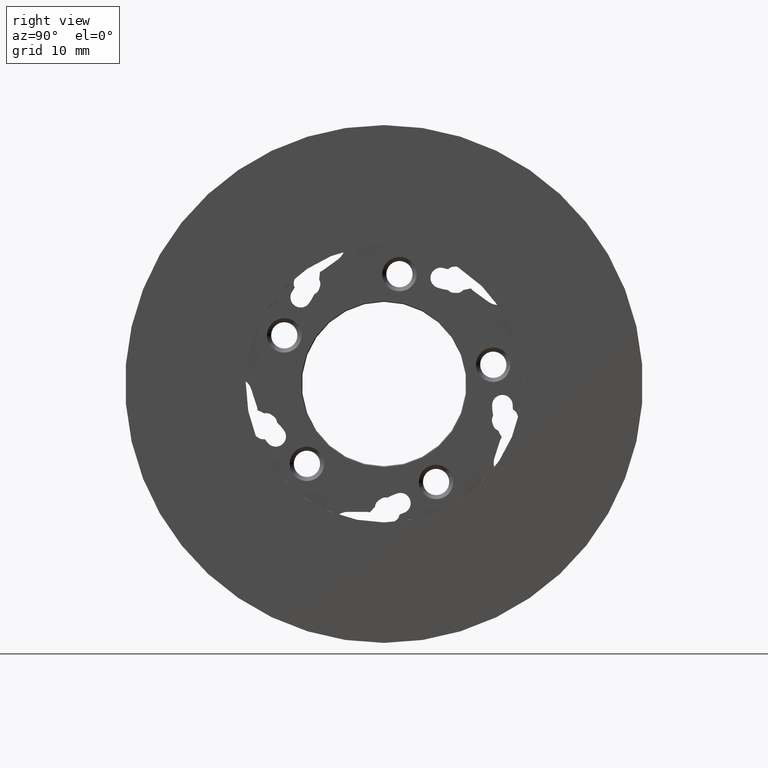
[diagram: clean part render]
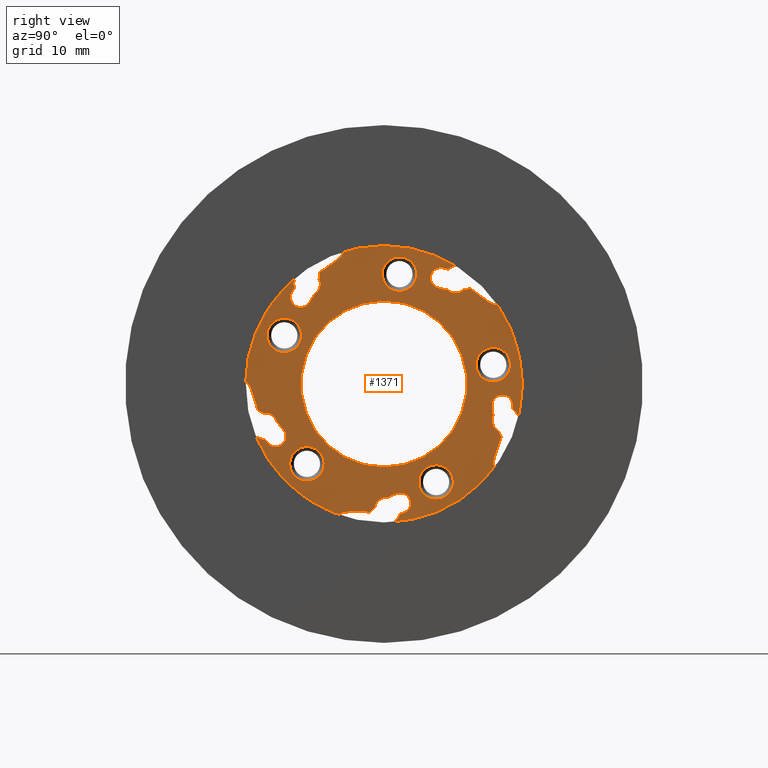
[diagram: same view with one face highlighted and labeled with its STEP entity id]
A machine part, right view. The second image highlights one B-rep face of the part: STEP entity #1371.
In plain terms, the highlighted planar face has unit normal (1, 0, -0).
Its self-contained STEP definition (entity closure, byte-faithful):
#8 = ORIENTED_EDGE ( 'NONE', *, *, #730, .F. ) ;
#13 = VERTEX_POINT ( 'NONE', #3526 ) ;
#19 = DIRECTION ( 'NONE',  ( 1.000000000000000000, 0.0000000000000000000, 0.0000000000000000000 ) ) ;
#22 = VERTEX_POINT ( 'NONE', #1111 ) ;
#29 = AXIS2_PLACEMENT_3D ( 'NONE', #2748, #38, #1528 ) ;
#31 = CARTESIAN_POINT ( 'NONE',  ( 0.0000000000000000000, -13.43683965535640112, -3.933809380129548394 ) ) ;
#38 = DIRECTION ( 'NONE',  ( 1.000000000000000000, -0.0000000000000000000, -0.0000000000000000000 ) ) ;
#41 = DIRECTION ( 'NONE',  ( 1.000000000000000000, 0.0000000000000000000, 0.0000000000000000000 ) ) ;
#49 = EDGE_CURVE ( 'NONE', #2343, #3101, #996, .T. ) ;
#52 = ORIENTED_EDGE ( 'NONE', *, *, #2574, .T. ) ;
#71 = DIRECTION ( 'NONE',  ( 0.0000000000000000000, 0.0000000000000000000, -1.000000000000000000 ) ) ;
#75 = AXIS2_PLACEMENT_3D ( 'NONE', #2633, #1123, #3576 ) ;
#85 = CARTESIAN_POINT ( 'NONE',  ( 0.0000000000000000000, 20.30054600997444680, -2.534536114855402200 ) ) ;
#87 = CIRCLE ( 'NONE', #3790, 7.142357545004235142 ) ;
#88 = DIRECTION ( 'NONE',  ( 1.000000000000000000, -0.0000000000000000000, -0.0000000000000000000 ) ) ;
#91 = DIRECTION ( 'NONE',  ( 1.000000000000000000, 0.0000000000000000000, 0.0000000000000000000 ) ) ;
#94 = CIRCLE ( 'NONE', #1350, 0.9999999999999983347 ) ;
#97 = EDGE_CURVE ( 'NONE', #1805, #2864, #140, .T. ) ;
#98 = VECTOR ( 'NONE', #1545, 1000.000000000000114 ) ;
#116 = AXIS2_PLACEMENT_3D ( 'NONE', #1505, #3647, #3877 ) ;
#121 = AXIS2_PLACEMENT_3D ( 'NONE', #3852, #2014, #1127 ) ;
#127 = CARTESIAN_POINT ( 'NONE',  ( 0.0000000000000000000, -13.02209949457632732, -4.677080857530694580 ) ) ;
#128 = CARTESIAN_POINT ( 'NONE',  ( -1.734723475976807094E-15, -5.533392987301162691, -15.90914674915010885 ) ) ;
#129 = LINE ( 'NONE', #813, #1067 ) ;
#133 = CARTESIAN_POINT ( 'NONE',  ( -2.602085213965210642E-15, -8.143538971382165315, -11.41002299275925580 ) ) ;
#139 = VERTEX_POINT ( 'NONE', #3024 ) ;
#140 = CIRCLE ( 'NONE', #1008, 7.142357545004234254 ) ;
#151 = VERTEX_POINT ( 'NONE', #3646 ) ;
#160 = VERTEX_POINT ( 'NONE', #2400 ) ;
#166 = ORIENTED_EDGE ( 'NONE', *, *, #2324, .T. ) ;
#172 = DIRECTION ( 'NONE',  ( 0.0000000000000000000, -0.5877852522924684742, -0.8090169943749508930 ) ) ;
#173 = PLANE ( 'NONE',  #1346 ) ;
#179 = DIRECTION ( 'NONE',  ( 0.0000000000000000000, 0.5877852522924684742, 0.8090169943749507819 ) ) ;
#182 = DIRECTION ( 'NONE',  ( 0.0000000000000000000, -0.5877852522924802425, 0.8090169943749421222 ) ) ;
#187 = VERTEX_POINT ( 'NONE', #2989 ) ;
#198 = CIRCLE ( 'NONE', #625, 2.100000000000000533 ) ;
#202 = DIRECTION ( 'NONE',  ( 1.000000000000000000, -0.0000000000000000000, -0.0000000000000000000 ) ) ;
#210 = CARTESIAN_POINT ( 'NONE',  ( 0.0000000000000000000, 20.30054600997444680, -2.534536114855402200 ) ) ;
#213 = AXIS2_PLACEMENT_3D ( 'NONE', #1448, #202, #2315 ) ;
#214 = ORIENTED_EDGE ( 'NONE', *, *, #3035, .F. ) ;
#220 = CIRCLE ( 'NONE', #2847, 7.142357545004236030 ) ;
#228 = VERTEX_POINT ( 'NONE', #639 ) ;
#232 = CIRCLE ( 'NONE', #1237, 2.000000000000001776 ) ;
#234 = DIRECTION ( 'NONE',  ( 1.000000000000000000, 0.0000000000000000000, -0.0000000000000000000 ) ) ;
#235 = AXIS2_PLACEMENT_3D ( 'NONE', #2810, #1654, #1625 ) ;
#237 = ORIENTED_EDGE ( 'NONE', *, *, #2026, .T. ) ;
#239 = ORIENTED_EDGE ( 'NONE', *, *, #1033, .F. ) ;
#242 = EDGE_CURVE ( 'NONE', #1978, #1436, #387, .T. ) ;
#244 = DIRECTION ( 'NONE',  ( 1.000000000000000000, 0.0000000000000000000, 0.0000000000000000000 ) ) ;
#245 = EDGE_CURVE ( 'NONE', #1647, #2151, #3325, .T. ) ;
#249 = VERTEX_POINT ( 'NONE', #3356 ) ;
#254 = EDGE_CURVE ( 'NONE', #2785, #1922, #3182, .T. ) ;
#259 = ORIENTED_EDGE ( 'NONE', *, *, #773, .T. ) ;
#265 = VERTEX_POINT ( 'NONE', #3688 ) ;
#268 = DIRECTION ( 'NONE',  ( 0.0000000000000000000, 0.9510565162951544194, -0.3090169943749446202 ) ) ;
#270 = AXIS2_PLACEMENT_3D ( 'NONE', #3536, #2034, #2984 ) ;
#272 = AXIS2_PLACEMENT_3D ( 'NONE', #1364, #3496, #3801 ) ;
#273 = CARTESIAN_POINT ( 'NONE',  ( 0.0000000000000000000, -10.14092014699084032, 9.305175913851705616 ) ) ;
#277 = EDGE_CURVE ( 'NONE', #1355, #1286, #2506, .T. ) ;
#290 = VERTEX_POINT ( 'NONE', #629 ) ;
#292 = DIRECTION ( 'NONE',  ( 0.0000000000000000000, 0.9999815153770604814, 0.006080205933813975783 ) ) ;
#294 = ORIENTED_EDGE ( 'NONE', *, *, #384, .F. ) ;
#297 = EDGE_CURVE ( 'NONE', #3716, #290, #752, .T. ) ;
#309 = DIRECTION ( 'NONE',  ( 0.0000000000000000000, 0.9510565162951545304, -0.3090169943749445092 ) ) ;
#311 = VERTEX_POINT ( 'NONE', #2156 ) ;
#315 = DIRECTION ( 'NONE',  ( 1.000000000000000000, 0.0000000000000000000, 0.0000000000000000000 ) ) ;
#317 = CIRCLE ( 'NONE', #3629, 2.100000000000000089 ) ;
#318 = CARTESIAN_POINT ( 'NONE',  ( 0.0000000000000000000, 16.32756049691609945, -4.031891738472436870 ) ) ;
#325 = AXIS2_PLACEMENT_3D ( 'NONE', #2803, #1864, #1564 ) ;
#327 = VERTEX_POINT ( 'NONE', #2131 ) ;
#332 = CIRCLE ( 'NONE', #1287, 1.250000000000001554 ) ;
#333 = CARTESIAN_POINT ( 'NONE',  ( -1.734723475976807094E-15, 0.0000000000000000000, 0.0000000000000000000 ) ) ;
#340 = CARTESIAN_POINT ( 'NONE',  ( 0.0000000000000000000, -13.17228549752976186, -7.632859451027188769 ) ) ;
#341 = ORIENTED_EDGE ( 'NONE', *, *, #245, .F. ) ;
#347 = VERTEX_POINT ( 'NONE', #3810 ) ;
#349 = DIRECTION ( 'NONE',  ( 0.0000000000000000000, 0.5877852522924797984, -0.8090169943749424553 ) ) ;
#353 = AXIS2_PLACEMENT_3D ( 'NONE', #3185, #3161, #1335 ) ;
#358 = EDGE_CURVE ( 'NONE', #3764, #3841, #3463, .T. ) ;
#363 = VECTOR ( 'NONE', #292, 1000.000000000000227 ) ;
#369 = CIRCLE ( 'NONE', #591, 0.9999999999999991118 ) ;
#373 = AXIS2_PLACEMENT_3D ( 'NONE', #3565, #234, #3289 ) ;
#379 = CIRCLE ( 'NONE', #2977, 0.9999999999999992228 ) ;
#384 = EDGE_CURVE ( 'NONE', #2458, #622, #2551, .T. ) ;
#386 = VERTEX_POINT ( 'NONE', #1670 ) ;
#387 = CIRCLE ( 'NONE', #325, 1.000000000000000222 ) ;
#388 = DIRECTION ( 'NONE',  ( -1.000000000000000000, 0.0000000000000000000, 0.0000000000000000000 ) ) ;
#393 = ORIENTED_EDGE ( 'NONE', *, *, #2477, .F. ) ;
#394 = ORIENTED_EDGE ( 'NONE', *, *, #1715, .F. ) ;
#397 = ORIENTED_EDGE ( 'NONE', *, *, #3498, .F. ) ;
#401 = CARTESIAN_POINT ( 'NONE',  ( 0.0000000000000000000, 13.87652644764180287, -5.656273445805332756 ) ) ;
#414 = CIRCLE ( 'NONE', #373, 1.250000000000001110 ) ;
#422 = CARTESIAN_POINT ( 'NONE',  ( 0.0000000000000000000, 8.545020039850282245, 13.28045416182303562 ) ) ;
#430 = AXIS2_PLACEMENT_3D ( 'NONE', #1427, #1494, #2422 ) ;
#432 = ORIENTED_EDGE ( 'NONE', *, *, #1630, .F. ) ;
#448 = AXIS2_PLACEMENT_3D ( 'NONE', #3763, #1915, #729 ) ;
#460 = FACE_OUTER_BOUND ( 'NONE', #501, .T. ) ;
#463 = CIRCLE ( 'NONE', #2220, 1.000000000000000666 ) ;
#469 = VERTEX_POINT ( 'NONE', #401 ) ;
#477 = DIRECTION ( 'NONE',  ( 1.000000000000000000, 0.0000000000000000000, 0.0000000000000000000 ) ) ;
#480 = CARTESIAN_POINT ( 'NONE',  ( 0.0000000000000000000, 2.395157330942436325, -15.68589657382186964 ) ) ;
#486 = EDGE_CURVE ( 'NONE', #249, #3191, #2042, .T. ) ;
#501 = EDGE_LOOP ( 'NONE', ( #3567, #2406, #3618, #935, #908, #2865, #1734, #3513, #1090, #1194, #2369, #768, #753, #1362, #1045, #2947, #1065, #341, #1971, #3895, #705, #2024, #294, #432, #756, #2208, #1470, #1489, #3186, #1990, #259, #3194, #712, #2250, #2928, #1089, #214, #755, #1092, #1043, #3845, #1963, #239, #397, #1888, #3691, #3224, #393, #2516, #1928, #754, #3793, #2822, #902, #394, #521, #2004, #3785, #2120, #1687, #1242, #8, #3551, #999, #1374, #2907, #839, #3487, #1607, #940, #2253, #2868, #1504, #2280, #2758 ) ) ;
#504 = VERTEX_POINT ( 'NONE', #1099 ) ;
#510 = EDGE_CURVE ( 'NONE', #2151, #2076, #2615, .T. ) ;
#512 = CARTESIAN_POINT ( 'NONE',  ( 0.0000000000000000000, -10.94282388370960568, 12.53391168263161859 ) ) ;
#521 = ORIENTED_EDGE ( 'NONE', *, *, #3168, .F. ) ;
#522 = CARTESIAN_POINT ( 'NONE',  ( -2.602085213965210642E-15, 3.876055547180665251, 12.71968323982382465 ) ) ;
#530 = AXIS2_PLACEMENT_3D ( 'NONE', #1169, #1774, #650 ) ;
#542 = EDGE_CURVE ( 'NONE', #2864, #1647, #3437, .T. ) ;
#546 = CARTESIAN_POINT ( 'NONE',  ( 0.0000000000000000000, 1.485682047785786830, -16.57217805452203763 ) ) ;
#550 = DIRECTION ( 'NONE',  ( 1.000000000000000000, -0.0000000000000000000, -0.0000000000000000000 ) ) ;
#551 = DIRECTION ( 'NONE',  ( 1.000000000000000000, 0.0000000000000000000, 0.0000000000000000000 ) ) ;
#552 = CIRCLE ( 'NONE', #2140, 2.100000000000000089 ) ;
#567 = VERTEX_POINT ( 'NONE', #2046 ) ;
#568 = DIRECTION ( 'NONE',  ( 1.000000000000000000, 0.0000000000000000000, 0.0000000000000000000 ) ) ;
#572 = AXIS2_PLACEMENT_3D ( 'NONE', #3662, #2127, #2374 ) ;
#582 = CARTESIAN_POINT ( 'NONE',  ( 0.0000000000000000000, -11.15766166001179727, 11.28231874418139036 ) ) ;
#588 = CARTESIAN_POINT ( 'NONE',  ( -1.734723475976807094E-15, -4.400000000000001243, -15.55700000000000038 ) ) ;
#591 = AXIS2_PLACEMENT_3D ( 'NONE', #3537, #1721, #1740 ) ;
#598 = CIRCLE ( 'NONE', #1068, 2.099999999999999201 ) ;
#607 = DIRECTION ( 'NONE',  ( 0.0000000000000000000, -0.9510565162951502005, -0.3090169943749581094 ) ) ;
#617 = EDGE_CURVE ( 'NONE', #1323, #504, #913, .T. ) ;
#622 = VERTEX_POINT ( 'NONE', #2111 ) ;
#624 = CARTESIAN_POINT ( 'NONE',  ( 0.0000000000000000000, 6.527488648838520646, 11.71463878976557460 ) ) ;
#625 = AXIS2_PLACEMENT_3D ( 'NONE', #919, #2778, #1251 ) ;
#627 = ORIENTED_EDGE ( 'NONE', *, *, #3847, .T. ) ;
#629 = CARTESIAN_POINT ( 'NONE',  ( 0.0000000000000000000, -13.71402314980741899, -3.734987464881536656 ) ) ;
#637 = CARTESIAN_POINT ( 'NONE',  ( 0.0000000000000000000, -9.124178633969885155, 9.828033083522024427 ) ) ;
#639 = CARTESIAN_POINT ( 'NONE',  ( 0.0000000000000000000, -14.55101983341350724, -3.580396256482178963 ) ) ;
#641 = AXIS2_PLACEMENT_3D ( 'NONE', #2285, #477, #182 ) ;
#643 = DIRECTION ( 'NONE',  ( -1.000000000000000000, 0.0000000000000000000, 0.0000000000000000000 ) ) ;
#650 = DIRECTION ( 'NONE',  ( 0.0000000000000000000, -0.9510565162951500895, -0.3090169943749582759 ) ) ;
#670 = DIRECTION ( 'NONE',  ( 0.0000000000000000000, 0.0000000000000000000, -1.000000000000000000 ) ) ;
#674 = VERTEX_POINT ( 'NONE', #1770 ) ;
#685 = CIRCLE ( 'NONE', #1979, 0.9999999999999992228 ) ;
#690 = LINE ( 'NONE', #3486, #1533 ) ;
#692 = DIRECTION ( 'NONE',  ( 1.000000000000000000, 0.0000000000000000000, 0.0000000000000000000 ) ) ;
#693 = EDGE_CURVE ( 'NONE', #1723, #962, #1850, .T. ) ;
#700 = AXIS2_PLACEMENT_3D ( 'NONE', #938, #923, #2122 ) ;
#705 = ORIENTED_EDGE ( 'NONE', *, *, #1491, .F. ) ;
#712 = ORIENTED_EDGE ( 'NONE', *, *, #1330, .F. ) ;
#714 = VERTEX_POINT ( 'NONE', #3908 ) ;
#723 = DIRECTION ( 'NONE',  ( 1.000000000000000000, 0.0000000000000000000, 0.0000000000000000000 ) ) ;
#729 = DIRECTION ( 'NONE',  ( 0.0000000000000000000, 0.0000000000000000000, -1.000000000000000000 ) ) ;
#730 = EDGE_CURVE ( 'NONE', #2823, #13, #685, .T. ) ;
#733 = CARTESIAN_POINT ( 'NONE',  ( 0.0000000000000000000, 0.1817566178721682635, -14.80023604835349715 ) ) ;
#735 = CIRCLE ( 'NONE', #1590, 4.642357545004233366 ) ;
#747 = EDGE_CURVE ( 'NONE', #13, #2473, #811, .T. ) ;
#751 = CARTESIAN_POINT ( 'NONE',  ( 0.0000000000000000000, 9.667518213795105453, 11.44947628198620926 ) ) ;
#752 = LINE ( 'NONE', #31, #98 ) ;
#753 = ORIENTED_EDGE ( 'NONE', *, *, #49, .F. ) ;
#754 = ORIENTED_EDGE ( 'NONE', *, *, #3795, .F. ) ;
#755 = ORIENTED_EDGE ( 'NONE', *, *, #963, .F. ) ;
#756 = ORIENTED_EDGE ( 'NONE', *, *, #2973, .F. ) ;
#757 = CARTESIAN_POINT ( 'NONE',  ( 0.0000000000000000000, 8.552316286970850001, 11.08047634337056309 ) ) ;
#768 = ORIENTED_EDGE ( 'NONE', *, *, #1659, .F. ) ;
#770 = EDGE_CURVE ( 'NONE', #1323, #3561, #2714, .T. ) ;
#771 = AXIS2_PLACEMENT_3D ( 'NONE', #1488, #3340, #3919 ) ;
#773 = EDGE_CURVE ( 'NONE', #1723, #1753, #3625, .T. ) ;
#774 = CIRCLE ( 'NONE', #116, 2.100000000000000089 ) ;
#778 = CARTESIAN_POINT ( 'NONE',  ( -1.734723475976807094E-15, -4.874552872425518046, 16.12321687914155888 ) ) ;
#781 = DIRECTION ( 'NONE',  ( -1.000000000000000000, -0.0000000000000000000, -0.0000000000000000000 ) ) ;
#795 = VERTEX_POINT ( 'NONE', #2455 ) ;
#796 = VERTEX_POINT ( 'NONE', #2436 ) ;
#800 = VERTEX_POINT ( 'NONE', #637 ) ;
#801 = VERTEX_POINT ( 'NONE', #1830 ) ;
#805 = DIRECTION ( 'NONE',  ( 0.0000000000000000000, -0.9510565162951545304, 0.3090169943749447312 ) ) ;
#808 = VECTOR ( 'NONE', #3348, 1000.000000000000114 ) ;
#811 = LINE ( 'NONE', #3365, #2716 ) ;
#813 = CARTESIAN_POINT ( 'NONE',  ( -1.301042606982605321E-15, -13.93616269869084512, -7.452411016807453770 ) ) ;
#818 = DIRECTION ( 'NONE',  ( 1.000000000000000000, -0.0000000000000000000, -0.0000000000000000000 ) ) ;
#834 = CARTESIAN_POINT ( 'NONE',  ( 0.0000000000000000000, -14.93372376744527408, 13.98284434792277153 ) ) ;
#839 = ORIENTED_EDGE ( 'NONE', *, *, #1703, .F. ) ;
#866 = CARTESIAN_POINT ( 'NONE',  ( 0.0000000000000000000, -14.29687854718137707, -4.547563360261187348 ) ) ;
#871 = DIRECTION ( 'NONE',  ( 1.000000000000000000, 0.0000000000000000000, 0.0000000000000000000 ) ) ;
#882 = CARTESIAN_POINT ( 'NONE',  ( 0.0000000000000000000, -17.91324966687443876, -9.881878768372866162 ) ) ;
#897 = VERTEX_POINT ( 'NONE', #1762 ) ;
#900 = DIRECTION ( 'NONE',  ( 0.0000000000000000000, -0.5877852522924686962, -0.8090169943749508930 ) ) ;
#902 = ORIENTED_EDGE ( 'NONE', *, *, #3820, .F. ) ;
#904 = CARTESIAN_POINT ( 'NONE',  ( 0.0000000000000000000, -15.38175913590556121, -3.203194242787471779 ) ) ;
#908 = ORIENTED_EDGE ( 'NONE', *, *, #1557, .F. ) ;
#909 = DIRECTION ( 'NONE',  ( 1.000000000000000000, 0.0000000000000000000, 0.0000000000000000000 ) ) ;
#913 = CIRCLE ( 'NONE', #771, 0.9999999999999991118 ) ;
#914 = CARTESIAN_POINT ( 'NONE',  ( 0.0000000000000000000, -14.71912152957911246, -6.721476349964781605 ) ) ;
#919 = CARTESIAN_POINT ( 'NONE',  ( -2.602085213965210642E-15, -9.377888001196373224, -9.711087304571876189 ) ) ;
#923 = DIRECTION ( 'NONE',  ( 1.000000000000000000, 0.0000000000000000000, 0.0000000000000000000 ) ) ;
#929 = CARTESIAN_POINT ( 'NONE',  ( -1.734723475976807094E-15, 15.33802448134427365, -9.610060041939586739 ) ) ;
#931 = DIRECTION ( 'NONE',  ( 1.000000000000000000, 0.0000000000000000000, 0.0000000000000000000 ) ) ;
#935 = ORIENTED_EDGE ( 'NONE', *, *, #254, .F. ) ;
#938 = CARTESIAN_POINT ( 'NONE',  ( 0.0000000000000000000, 3.862726624353946203, -20.09018129948315945 ) ) ;
#940 = ORIENTED_EDGE ( 'NONE', *, *, #1444, .F. ) ;
#949 = DIRECTION ( 'NONE',  ( 0.0000000000000000000, 0.9510565162951502005, 0.3090169943749581094 ) ) ;
#950 = CIRCLE ( 'NONE', #1969, 16.84397186645439248 ) ;
#954 = EDGE_CURVE ( 'NONE', #1743, #1792, #3020, .T. ) ;
#958 = DIRECTION ( 'NONE',  ( 0.0000000000000000000, 0.0000000000000000000, -1.000000000000000000 ) ) ;
#960 = CARTESIAN_POINT ( 'NONE',  ( 0.0000000000000000000, 13.18286677084444669, -4.715457545680901141 ) ) ;
#962 = VERTEX_POINT ( 'NONE', #1213 ) ;
#963 = EDGE_CURVE ( 'NONE', #2146, #2601, #1567, .T. ) ;
#971 = CARTESIAN_POINT ( 'NONE',  ( 0.0000000000000000000, -15.61955199648494208, -6.304679505495139225 ) ) ;
#977 = CARTESIAN_POINT ( 'NONE',  ( -1.301042606982605321E-15, 15.65500974931643974, -2.162343746174900883 ) ) ;
#981 = CARTESIAN_POINT ( 'NONE',  ( 0.0000000000000000000, -14.93372376744527408, 13.98284434792277153 ) ) ;
#988 = DIRECTION ( 'NONE',  ( 0.0000000000000000000, 0.0000000000000000000, -1.000000000000000000 ) ) ;
#992 = CIRCLE ( 'NONE', #448, 10.09999999999999609 ) ;
#996 = CIRCLE ( 'NONE', #121, 1.000000000000000222 ) ;
#999 = ORIENTED_EDGE ( 'NONE', *, *, #1132, .F. ) ;
#1008 = AXIS2_PLACEMENT_3D ( 'NONE', #3009, #19, #3608 ) ;
#1015 = LINE ( 'NONE', #3205, #1902 ) ;
#1016 = CARTESIAN_POINT ( 'NONE',  ( 0.0000000000000000000, 10.56131420819114020, 11.63260975309930068 ) ) ;
#1027 = ORIENTED_EDGE ( 'NONE', *, *, #1827, .T. ) ;
#1029 = AXIS2_PLACEMENT_3D ( 'NONE', #3321, #2717, #1485 ) ;
#1033 = EDGE_CURVE ( 'NONE', #795, #2230, #2283, .T. ) ;
#1043 = ORIENTED_EDGE ( 'NONE', *, *, #1999, .F. ) ;
#1045 = ORIENTED_EDGE ( 'NONE', *, *, #486, .F. ) ;
#1046 = AXIS2_PLACEMENT_3D ( 'NONE', #2490, #2162, #958 ) ;
#1058 = EDGE_CURVE ( 'NONE', #1286, #1355, #198, .T. ) ;
#1065 = ORIENTED_EDGE ( 'NONE', *, *, #510, .F. ) ;
#1067 = VECTOR ( 'NONE', #3203, 1000.000000000000114 ) ;
#1068 = AXIS2_PLACEMENT_3D ( 'NONE', #3838, #1685, #172 ) ;
#1071 = DIRECTION ( 'NONE',  ( -1.000000000000000000, 0.0000000000000000000, -0.0000000000000000000 ) ) ;
#1076 = CARTESIAN_POINT ( 'NONE',  ( 0.0000000000000000000, 14.40835347502962982, -2.578633385846397452 ) ) ;
#1083 = CARTESIAN_POINT ( 'NONE',  ( 0.0000000000000000000, 13.28421894538960757, -3.870360138989262122 ) ) ;
#1088 = DIRECTION ( 'NONE',  ( 0.0000000000000000000, 0.5877852522924683631, 0.8090169943749510040 ) ) ;
#1089 = ORIENTED_EDGE ( 'NONE', *, *, #3531, .F. ) ;
#1090 = ORIENTED_EDGE ( 'NONE', *, *, #242, .F. ) ;
#1092 = ORIENTED_EDGE ( 'NONE', *, *, #2084, .F. ) ;
#1098 = CARTESIAN_POINT ( 'NONE',  ( 0.0000000000000000000, -7.790050381298208926, 11.88863648082115532 ) ) ;
#1099 = CARTESIAN_POINT ( 'NONE',  ( 0.0000000000000000000, 1.210936759361282089, -16.77435587246332460 ) ) ;
#1100 = EDGE_CURVE ( 'NONE', #3917, #347, #2479, .T. ) ;
#1106 = CARTESIAN_POINT ( 'NONE',  ( -1.734723475976807094E-15, 12.70384994516371790, 9.999622271404245311 ) ) ;
#1108 = DIRECTION ( 'NONE',  ( 0.0000000000000000000, -0.9999815153770604814, -0.006080205933812753670 ) ) ;
#1111 = CARTESIAN_POINT ( 'NONE',  ( 0.0000000000000000000, -7.901671604657806824, 12.73243894145851840 ) ) ;
#1115 = DIRECTION ( 'NONE',  ( 0.0000000000000000000, 0.9510565162951503115, 0.3090169943749577763 ) ) ;
#1123 = DIRECTION ( 'NONE',  ( 1.000000000000000000, 0.0000000000000000000, 0.0000000000000000000 ) ) ;
#1125 = VERTEX_POINT ( 'NONE', #3292 ) ;
#1127 = DIRECTION ( 'NONE',  ( 0.0000000000000000000, -0.9510565162951544194, 0.3090169943749447867 ) ) ;
#1129 = CARTESIAN_POINT ( 'NONE',  ( 0.0000000000000000000, -13.17228549752976186, -6.382859451027186104 ) ) ;
#1132 = EDGE_CURVE ( 'NONE', #2418, #2488, #232, .T. ) ;
#1133 = DIRECTION ( 'NONE',  ( -0.0000000000000000000, -1.000000000000000000, -7.885106708985483117E-16 ) ) ;
#1141 = DIRECTION ( 'NONE',  ( 1.000000000000000000, -0.0000000000000000000, -0.0000000000000000000 ) ) ;
#1148 = EDGE_CURVE ( 'NONE', #1588, #2874, #2352, .T. ) ;
#1153 = EDGE_CURVE ( 'NONE', #3234, #3760, #3915, .T. ) ;
#1162 = DIRECTION ( 'NONE',  ( 1.000000000000000000, 0.0000000000000000000, 0.0000000000000000000 ) ) ;
#1163 = VERTEX_POINT ( 'NONE', #3337 ) ;
#1169 = CARTESIAN_POINT ( 'NONE',  ( 0.0000000000000000000, -17.91324966687443876, -9.881878768372867938 ) ) ;
#1172 = CIRCLE ( 'NONE', #2499, 16.84397186645439248 ) ;
#1177 = CARTESIAN_POINT ( 'NONE',  ( -2.602085213965210642E-15, 6.337866097609665239, -11.91979250359544018 ) ) ;
#1190 = CARTESIAN_POINT ( 'NONE',  ( 0.0000000000000000000, 8.558396492904661201, 11.08049482799350471 ) ) ;
#1191 = EDGE_LOOP ( 'NONE', ( #1027, #2556 ) ) ;
#1194 = ORIENTED_EDGE ( 'NONE', *, *, #2037, .F. ) ;
#1204 = EDGE_CURVE ( 'NONE', #714, #3797, #1541, .T. ) ;
#1210 = CARTESIAN_POINT ( 'NONE',  ( 0.0000000000000000000, 14.23940838821143373, -4.724438322401832480 ) ) ;
#1213 = CARTESIAN_POINT ( 'NONE',  ( 0.0000000000000000000, 8.880050581102899798, 14.28250973912748023 ) ) ;
#1219 = CARTESIAN_POINT ( 'NONE',  ( 0.0000000000000000000, -7.799643733939034540, 13.63908080098019227 ) ) ;
#1236 = VERTEX_POINT ( 'NONE', #340 ) ;
#1237 = AXIS2_PLACEMENT_3D ( 'NONE', #2426, #550, #3900 ) ;
#1238 = CARTESIAN_POINT ( 'NONE',  ( 0.0000000000000000000, -14.99630502403013210, -5.522654434716770311 ) ) ;
#1242 = ORIENTED_EDGE ( 'NONE', *, *, #747, .F. ) ;
#1248 = DIRECTION ( 'NONE',  ( 1.000000000000000000, -0.0000000000000000000, -0.0000000000000000000 ) ) ;
#1251 = DIRECTION ( 'NONE',  ( 0.0000000000000000000, 0.5877852522924804646, -0.8090169943749421222 ) ) ;
#1260 = EDGE_CURVE ( 'NONE', #1922, #3561, #2399, .T. ) ;
#1272 = VERTEX_POINT ( 'NONE', #1219 ) ;
#1275 = CIRCLE ( 'NONE', #1901, 4.642357545004228925 ) ;
#1278 = AXIS2_PLACEMENT_3D ( 'NONE', #3158, #2229, #988 ) ;
#1279 = CARTESIAN_POINT ( 'NONE',  ( -1.301042606982605321E-15, 15.03475164460123992, 8.306123058162940609 ) ) ;
#1285 = EDGE_CURVE ( 'NONE', #2178, #139, #1583, .T. ) ;
#1286 = VERTEX_POINT ( 'NONE', #2456 ) ;
#1287 = AXIS2_PLACEMENT_3D ( 'NONE', #1129, #2102, #1803 ) ;
#1300 = CARTESIAN_POINT ( 'NONE',  ( -1.734723475976807094E-15, 2.062791623118144150E-15, 16.84397186645439248 ) ) ;
#1301 = EDGE_LOOP ( 'NONE', ( #166, #2938 ) ) ;
#1307 = DIRECTION ( 'NONE',  ( 0.0000000000000000000, 0.9510565162951544194, -0.3090169943749446757 ) ) ;
#1314 = FACE_BOUND ( 'NONE', #3017, .T. ) ;
#1318 = DIRECTION ( 'NONE',  ( 0.0000000000000000000, 0.9510565162951499785, 0.3090169943749584980 ) ) ;
#1319 = CIRCLE ( 'NONE', #2572, 0.9999999999999992228 ) ;
#1323 = VERTEX_POINT ( 'NONE', #2854 ) ;
#1326 = CARTESIAN_POINT ( 'NONE',  ( 0.0000000000000000000, 13.18286677084444669, -4.715457545680901141 ) ) ;
#1330 = EDGE_CURVE ( 'NONE', #2874, #2599, #2935, .T. ) ;
#1332 = AXIS2_PLACEMENT_3D ( 'NONE', #3132, #692, #1889 ) ;
#1335 = DIRECTION ( 'NONE',  ( 0.0000000000000000000, 0.0000000000000000000, 1.000000000000000000 ) ) ;
#1341 = EDGE_CURVE ( 'NONE', #1436, #2513, #3744, .T. ) ;
#1345 = CIRCLE ( 'NONE', #3771, 1.250000000000001332 ) ;
#1346 = AXIS2_PLACEMENT_3D ( 'NONE', #2335, #2972, #3263 ) ;
#1350 = AXIS2_PLACEMENT_3D ( 'NONE', #1210, #909, #309 ) ;
#1355 = VERTEX_POINT ( 'NONE', #133 ) ;
#1362 = ORIENTED_EDGE ( 'NONE', *, *, #1809, .F. ) ;
#1364 = CARTESIAN_POINT ( 'NONE',  ( 0.0000000000000000000, -8.742968204635111817, 12.19186514365970986 ) ) ;
#1371 = ADVANCED_FACE ( 'NONE', ( #2159, #3875, #1314, #2453, #3092, #2258, #460 ), #173, .T. ) ;
#1374 = ORIENTED_EDGE ( 'NONE', *, *, #1822, .F. ) ;
#1377 = CARTESIAN_POINT ( 'NONE',  ( 0.0000000000000000000, 8.552316286970850001, 12.08047634337056486 ) ) ;
#1382 = CARTESIAN_POINT ( 'NONE',  ( 0.0000000000000000000, 16.22017892896031555, -3.708117059965417628 ) ) ;
#1396 = CARTESIAN_POINT ( 'NONE',  ( 0.0000000000000000000, 8.538939833916465716, 14.28043567720009754 ) ) ;
#1398 = DIRECTION ( 'NONE',  ( 1.000000000000000000, 0.0000000000000000000, -0.0000000000000000000 ) ) ;
#1417 = AXIS2_PLACEMENT_3D ( 'NONE', #333, #3369, #2442 ) ;
#1420 = CARTESIAN_POINT ( 'NONE',  ( -1.734723475976807094E-15, -17.37753664421885702, -3.333087034391811532 ) ) ;
#1427 = CARTESIAN_POINT ( 'NONE',  ( -1.734723475976807094E-15, -2.199999999999999289, -17.55699999999999861 ) ) ;
#1432 = DIRECTION ( 'NONE',  ( 1.000000000000000000, -0.0000000000000000000, -0.0000000000000000000 ) ) ;
#1436 = VERTEX_POINT ( 'NONE', #960 ) ;
#1437 = DIRECTION ( 'NONE',  ( -1.000000000000000000, -0.0000000000000000000, 0.0000000000000000000 ) ) ;
#1444 = EDGE_CURVE ( 'NONE', #3797, #567, #1954, .T. ) ;
#1447 = AXIS2_PLACEMENT_3D ( 'NONE', #929, #1248, #71 ) ;
#1448 = CARTESIAN_POINT ( 'NONE',  ( -1.734723475976807094E-15, 12.09958306212376122, 12.91078381519757912 ) ) ;
#1467 = CARTESIAN_POINT ( 'NONE',  ( 0.0000000000000000000, -13.43683965535640112, -3.933809380129548394 ) ) ;
#1470 = ORIENTED_EDGE ( 'NONE', *, *, #1531, .F. ) ;
#1474 = DIRECTION ( 'NONE',  ( 0.0000000000000000000, 0.5877852522924802425, -0.8090169943749421222 ) ) ;
#1477 = AXIS2_PLACEMENT_3D ( 'NONE', #3823, #781, #2332 ) ;
#1481 = CIRCLE ( 'NONE', #2888, 1.250000000000001554 ) ;
#1485 = DIRECTION ( 'NONE',  ( 0.0000000000000000000, 0.0000000000000000000, 1.000000000000000000 ) ) ;
#1488 = CARTESIAN_POINT ( 'NONE',  ( 0.0000000000000000000, 0.6182433821278161545, -15.96892768784126382 ) ) ;
#1489 = ORIENTED_EDGE ( 'NONE', *, *, #3352, .F. ) ;
#1491 = EDGE_CURVE ( 'NONE', #1163, #1805, #369, .T. ) ;
#1494 = DIRECTION ( 'NONE',  ( 1.000000000000000000, -0.0000000000000000000, -0.0000000000000000000 ) ) ;
#1504 = ORIENTED_EDGE ( 'NONE', *, *, #2958, .F. ) ;
#1505 = CARTESIAN_POINT ( 'NONE',  ( -2.602085213965210642E-15, 13.29490466566480755, 2.344250398503564981 ) ) ;
#1516 = DIRECTION ( 'NONE',  ( -1.000000000000000000, 0.0000000000000000000, 0.0000000000000000000 ) ) ;
#1524 = EDGE_CURVE ( 'NONE', #469, #160, #87, .T. ) ;
#1528 = DIRECTION ( 'NONE',  ( 0.0000000000000000000, 0.0000000000000000000, -1.000000000000000000 ) ) ;
#1531 = EDGE_CURVE ( 'NONE', #3663, #3234, #2630, .T. ) ;
#1533 = VECTOR ( 'NONE', #1133, 1000.000000000000000 ) ;
#1536 = CARTESIAN_POINT ( 'NONE',  ( 0.0000000000000000000, -14.93372376744527230, 13.98284434792277331 ) ) ;
#1541 = CIRCLE ( 'NONE', #700, 7.142357545004237807 ) ;
#1542 = DIRECTION ( 'NONE',  ( 0.0000000000000000000, 0.9510565162951502005, 0.3090169943749581094 ) ) ;
#1545 = DIRECTION ( 'NONE',  ( 0.0000000000000000000, -0.8125758953796552442, 0.5828553973739555305 ) ) ;
#1557 = EDGE_CURVE ( 'NONE', #160, #2785, #1672, .T. ) ;
#1564 = DIRECTION ( 'NONE',  ( 0.0000000000000000000, 0.9510565162951544194, -0.3090169943749447867 ) ) ;
#1567 = LINE ( 'NONE', #3078, #808 ) ;
#1568 = CARTESIAN_POINT ( 'NONE',  ( 0.0000000000000000000, -1.706806218814957088, -15.61876371559079502 ) ) ;
#1572 = AXIS2_PLACEMENT_3D ( 'NONE', #2909, #3228, #3830 ) ;
#1580 = CARTESIAN_POINT ( 'NONE',  ( -1.734723475976807094E-15, 16.01786186896915254, -7.517735706090244996 ) ) ;
#1583 = CIRCLE ( 'NONE', #1651, 2.100000000000000089 ) ;
#1588 = VERTEX_POINT ( 'NONE', #2586 ) ;
#1590 = AXIS2_PLACEMENT_3D ( 'NONE', #3260, #1764, #268 ) ;
#1591 = DIRECTION ( 'NONE',  ( 1.000000000000000000, 0.0000000000000000000, 0.0000000000000000000 ) ) ;
#1595 = EDGE_CURVE ( 'NONE', #265, #187, #129, .T. ) ;
#1607 = ORIENTED_EDGE ( 'NONE', *, *, #2594, .F. ) ;
#1620 = AXIS2_PLACEMENT_3D ( 'NONE', #422, #91, #3730 ) ;
#1625 = DIRECTION ( 'NONE',  ( 0.0000000000000000000, 0.0000000000000000000, -1.000000000000000000 ) ) ;
#1626 = AXIS2_PLACEMENT_3D ( 'NONE', #3308, #568, #900 ) ;
#1628 = CARTESIAN_POINT ( 'NONE',  ( -2.602085213965210642E-15, 13.29490466566480755, 0.2442503985035648917 ) ) ;
#1630 = EDGE_CURVE ( 'NONE', #3013, #2458, #1869, .T. ) ;
#1633 = DIRECTION ( 'NONE',  ( 0.0000000000000000000, -0.9510565162951546414, 0.3090169943749445647 ) ) ;
#1641 = VECTOR ( 'NONE', #2754, 1000.000000000000000 ) ;
#1647 = VERTEX_POINT ( 'NONE', #3882 ) ;
#1648 = CARTESIAN_POINT ( 'NONE',  ( 0.0000000000000000000, 16.22017892896031555, -3.708117059965417628 ) ) ;
#1651 = AXIS2_PLACEMENT_3D ( 'NONE', #3089, #3385, #2413 ) ;
#1654 = DIRECTION ( 'NONE',  ( 1.000000000000000000, -0.0000000000000000000, -0.0000000000000000000 ) ) ;
#1659 = EDGE_CURVE ( 'NONE', #3101, #897, #735, .T. ) ;
#1670 = CARTESIAN_POINT ( 'NONE',  ( 0.0000000000000000000, -14.17802983100208003, -7.125138600463793104 ) ) ;
#1671 = AXIS2_PLACEMENT_3D ( 'NONE', #2769, #3062, #670 ) ;
#1672 = CIRCLE ( 'NONE', #2417, 2.000000000000000000 ) ;
#1679 = VECTOR ( 'NONE', #1849, 1000.000000000000114 ) ;
#1681 = CARTESIAN_POINT ( 'NONE',  ( 0.0000000000000000000, 8.683700799991214581, 18.52375183478842757 ) ) ;
#1685 = DIRECTION ( 'NONE',  ( -1.000000000000000000, 0.0000000000000000000, 0.0000000000000000000 ) ) ;
#1687 = ORIENTED_EDGE ( 'NONE', *, *, #3202, .F. ) ;
#1691 = AXIS2_PLACEMENT_3D ( 'NONE', #1851, #41, #349 ) ;
#1697 = AXIS2_PLACEMENT_3D ( 'NONE', #3317, #2391, #2080 ) ;
#1703 = EDGE_CURVE ( 'NONE', #327, #1743, #2003, .T. ) ;
#1711 = CARTESIAN_POINT ( 'NONE',  ( -2.602085213965210642E-15, -13.36806865485297457, 4.219074793465075857 ) ) ;
#1715 = EDGE_CURVE ( 'NONE', #3708, #3432, #3690, .T. ) ;
#1721 = DIRECTION ( 'NONE',  ( 1.000000000000000000, 0.0000000000000000000, 0.0000000000000000000 ) ) ;
#1723 = VERTEX_POINT ( 'NONE', #2978 ) ;
#1734 = ORIENTED_EDGE ( 'NONE', *, *, #3174, .F. ) ;
#1737 = CARTESIAN_POINT ( 'NONE',  ( 0.0000000000000000000, -10.94282388370960568, 12.53391168263161859 ) ) ;
#1740 = DIRECTION ( 'NONE',  ( 0.0000000000000000000, 0.5877852522924691403, 0.8090169943749503378 ) ) ;
#1743 = VERTEX_POINT ( 'NONE', #1568 ) ;
#1747 = CARTESIAN_POINT ( 'NONE',  ( 0.0000000000000000000, 3.862726624353946203, -20.09018129948315945 ) ) ;
#1753 = VERTEX_POINT ( 'NONE', #1300 ) ;
#1756 = DIRECTION ( 'NONE',  ( 0.0000000000000000000, -0.9510565162951502005, -0.3090169943749581094 ) ) ;
#1760 = EDGE_CURVE ( 'NONE', #2123, #2511, #598, .T. ) ;
#1762 = CARTESIAN_POINT ( 'NONE',  ( 0.0000000000000000000, 15.65831846992807641, -2.569278626173763680 ) ) ;
#1764 = DIRECTION ( 'NONE',  ( -1.000000000000000000, 0.0000000000000000000, -0.0000000000000000000 ) ) ;
#1766 = VECTOR ( 'NONE', #3870, 1000.000000000000227 ) ;
#1770 = CARTESIAN_POINT ( 'NONE',  ( 0.0000000000000000000, -8.472218273059363369, 10.93945511111792435 ) ) ;
#1774 = DIRECTION ( 'NONE',  ( 1.000000000000000000, 0.0000000000000000000, 0.0000000000000000000 ) ) ;
#1792 = VERTEX_POINT ( 'NONE', #2527 ) ;
#1803 = DIRECTION ( 'NONE',  ( 0.0000000000000000000, 0.9510565162951499785, 0.3090169943749584980 ) ) ;
#1804 = AXIS2_PLACEMENT_3D ( 'NONE', #1747, #1398, #3558 ) ;
#1805 = VERTEX_POINT ( 'NONE', #751 ) ;
#1809 = EDGE_CURVE ( 'NONE', #3191, #2343, #3211, .T. ) ;
#1811 = CARTESIAN_POINT ( 'NONE',  ( -1.301042606982605321E-15, -3.253598695226942006, 16.86563170481917950 ) ) ;
#1815 = CARTESIAN_POINT ( 'NONE',  ( 0.0000000000000000000, -14.71912152957911246, -5.721476349964781605 ) ) ;
#1822 = EDGE_CURVE ( 'NONE', #1792, #2418, #690, .T. ) ;
#1827 = EDGE_CURVE ( 'NONE', #3183, #1125, #3821, .T. ) ;
#1828 = CARTESIAN_POINT ( 'NONE',  ( 0.0000000000000000000, 0.4241181805282366879, -13.83005004920338266 ) ) ;
#1830 = CARTESIAN_POINT ( 'NONE',  ( 0.0000000000000000000, -0.6856820477857981100, -14.19698568167272157 ) ) ;
#1840 = ORIENTED_EDGE ( 'NONE', *, *, #1760, .T. ) ;
#1844 = VERTEX_POINT ( 'NONE', #546 ) ;
#1845 = CARTESIAN_POINT ( 'NONE',  ( 0.0000000000000000000, -17.91324966687443876, -9.881878768372867938 ) ) ;
#1849 = DIRECTION ( 'NONE',  ( -0.0000000000000000000, -0.3090169943749439541, -0.9510565162951546414 ) ) ;
#1850 = CIRCLE ( 'NONE', #572, 1.000000000000000444 ) ;
#1851 = CARTESIAN_POINT ( 'NONE',  ( 0.0000000000000000000, -10.14092014699084032, 10.55517591385170562 ) ) ;
#1854 = DIRECTION ( 'NONE',  ( 0.0000000000000000000, -0.5877852522924805756, 0.8090169943749421222 ) ) ;
#1864 = DIRECTION ( 'NONE',  ( 1.000000000000000000, 0.0000000000000000000, 0.0000000000000000000 ) ) ;
#1865 = EDGE_CURVE ( 'NONE', #311, #1868, #2210, .T. ) ;
#1867 = CIRCLE ( 'NONE', #3816, 7.142357545004235142 ) ;
#1868 = VERTEX_POINT ( 'NONE', #3896 ) ;
#1869 = CIRCLE ( 'NONE', #2784, 1.000000000000000444 ) ;
#1878 = CIRCLE ( 'NONE', #2647, 1.250000000000001332 ) ;
#1880 = AXIS2_PLACEMENT_3D ( 'NONE', #3674, #2150, #607 ) ;
#1888 = ORIENTED_EDGE ( 'NONE', *, *, #2394, .F. ) ;
#1889 = DIRECTION ( 'NONE',  ( 0.0000000000000000000, 0.9510565162951502005, 0.3090169943749581094 ) ) ;
#1901 = AXIS2_PLACEMENT_3D ( 'NONE', #882, #1437, #3255 ) ;
#1902 = VECTOR ( 'NONE', #2290, 1000.000000000000227 ) ;
#1915 = DIRECTION ( 'NONE',  ( -1.000000000000000000, 0.0000000000000000000, 0.0000000000000000000 ) ) ;
#1922 = VERTEX_POINT ( 'NONE', #3029 ) ;
#1928 = ORIENTED_EDGE ( 'NONE', *, *, #2684, .F. ) ;
#1954 = CIRCLE ( 'NONE', #3594, 0.9999999999999991118 ) ;
#1958 = VECTOR ( 'NONE', #3034, 999.9999999999998863 ) ;
#1960 = CIRCLE ( 'NONE', #2002, 7.142357545004235142 ) ;
#1963 = ORIENTED_EDGE ( 'NONE', *, *, #3197, .F. ) ;
#1969 = AXIS2_PLACEMENT_3D ( 'NONE', #3554, #1432, #3267 ) ;
#1971 = ORIENTED_EDGE ( 'NONE', *, *, #542, .F. ) ;
#1974 = EDGE_CURVE ( 'NONE', #1125, #3183, #317, .T. ) ;
#1978 = VERTEX_POINT ( 'NONE', #1083 ) ;
#1979 = AXIS2_PLACEMENT_3D ( 'NONE', #1238, #3087, #1542 ) ;
#1980 = DIRECTION ( 'NONE',  ( 0.0000000000000000000, 0.0000000000000000000, -1.000000000000000000 ) ) ;
#1986 = DIRECTION ( 'NONE',  ( 0.0000000000000000000, 0.5877852522924802425, -0.8090169943749421222 ) ) ;
#1989 = DIRECTION ( 'NONE',  ( 0.0000000000000000000, -0.9510565162951544194, 0.3090169943749447312 ) ) ;
#1990 = ORIENTED_EDGE ( 'NONE', *, *, #693, .F. ) ;
#1991 = LINE ( 'NONE', #3577, #3079 ) ;
#1992 = CARTESIAN_POINT ( 'NONE',  ( 0.0000000000000000000, -7.893486849031516428, 11.56357996154824264 ) ) ;
#1999 = EDGE_CURVE ( 'NONE', #800, #674, #1867, .T. ) ;
#2002 = AXIS2_PLACEMENT_3D ( 'NONE', #834, #3553, #2589 ) ;
#2003 = CIRCLE ( 'NONE', #1804, 7.142357545004234254 ) ;
#2004 = ORIENTED_EDGE ( 'NONE', *, *, #2449, .F. ) ;
#2009 = CARTESIAN_POINT ( 'NONE',  ( 0.0000000000000000000, -9.989906060372701901, 12.23068301979306760 ) ) ;
#2014 = DIRECTION ( 'NONE',  ( 1.000000000000000000, 0.0000000000000000000, 0.0000000000000000000 ) ) ;
#2017 = EDGE_LOOP ( 'NONE', ( #3165, #3414 ) ) ;
#2024 = ORIENTED_EDGE ( 'NONE', *, *, #2346, .F. ) ;
#2026 = EDGE_CURVE ( 'NONE', #151, #2130, #2439, .T. ) ;
#2034 = DIRECTION ( 'NONE',  ( 1.000000000000000000, -0.0000000000000000000, -0.0000000000000000000 ) ) ;
#2037 = EDGE_CURVE ( 'NONE', #796, #1978, #3162, .T. ) ;
#2042 = CIRCLE ( 'NONE', #75, 1.000000000000000222 ) ;
#2046 = CARTESIAN_POINT ( 'NONE',  ( 0.0000000000000000000, -0.4109367593612927028, -13.99480786373143459 ) ) ;
#2068 = CARTESIAN_POINT ( 'NONE',  ( 0.0000000000000000000, -12.16654116405744368, -5.640580301590581769 ) ) ;
#2076 = VERTEX_POINT ( 'NONE', #2761 ) ;
#2080 = DIRECTION ( 'NONE',  ( 0.0000000000000000000, 0.0000000000000000000, -1.000000000000000000 ) ) ;
#2084 = EDGE_CURVE ( 'NONE', #674, #2146, #3489, .T. ) ;
#2096 = LINE ( 'NONE', #1190, #363 ) ;
#2102 = DIRECTION ( 'NONE',  ( 1.000000000000000000, 0.0000000000000000000, 0.0000000000000000000 ) ) ;
#2106 = VECTOR ( 'NONE', #3740, 999.9999999999998863 ) ;
#2111 = CARTESIAN_POINT ( 'NONE',  ( 0.0000000000000000000, 8.558396492904661201, 11.08049482799350471 ) ) ;
#2114 = CARTESIAN_POINT ( 'NONE',  ( -2.602085213965210642E-15, 8.335084781829481315, -11.27085681540802931 ) ) ;
#2120 = ORIENTED_EDGE ( 'NONE', *, *, #358, .F. ) ;
#2122 = DIRECTION ( 'NONE',  ( 0.0000000000000000000, 0.0000000000000000000, -1.000000000000000000 ) ) ;
#2123 = VERTEX_POINT ( 'NONE', #1711 ) ;
#2126 = DIRECTION ( 'NONE',  ( 0.0000000000000000000, 0.9510565162951500895, 0.3090169943749582759 ) ) ;
#2127 = DIRECTION ( 'NONE',  ( 1.000000000000000000, 0.0000000000000000000, 0.0000000000000000000 ) ) ;
#2130 = VERTEX_POINT ( 'NONE', #2585 ) ;
#2131 = CARTESIAN_POINT ( 'NONE',  ( 0.0000000000000000000, -1.091353223365709724, -14.94524552115735894 ) ) ;
#2132 = CARTESIAN_POINT ( 'NONE',  ( 0.0000000000000000000, 7.282215690143277520, 14.09799505627786331 ) ) ;
#2140 = AXIS2_PLACEMENT_3D ( 'NONE', #3794, #1071, #1633 ) ;
#2146 = VERTEX_POINT ( 'NONE', #1992 ) ;
#2150 = DIRECTION ( 'NONE',  ( 1.000000000000000000, 0.0000000000000000000, 0.0000000000000000000 ) ) ;
#2151 = VERTEX_POINT ( 'NONE', #1106 ) ;
#2156 = CARTESIAN_POINT ( 'NONE',  ( 0.0000000000000000000, -10.82281353829061388, 12.90682359658256573 ) ) ;
#2159 = FACE_BOUND ( 'NONE', #1191, .T. ) ;
#2162 = DIRECTION ( 'NONE',  ( -1.000000000000000000, 0.0000000000000000000, 0.0000000000000000000 ) ) ;
#2169 = CIRCLE ( 'NONE', #272, 0.9999999999999982236 ) ;
#2178 = VERTEX_POINT ( 'NONE', #522 ) ;
#2208 = ORIENTED_EDGE ( 'NONE', *, *, #1153, .F. ) ;
#2210 = CIRCLE ( 'NONE', #2916, 1.000000000000000666 ) ;
#2213 = AXIS2_PLACEMENT_3D ( 'NONE', #2634, #1516, #2734 ) ;
#2214 = CIRCLE ( 'NONE', #1671, 0.9999999999999974465 ) ;
#2216 = CARTESIAN_POINT ( 'NONE',  ( 0.0000000000000000000, -15.30197692695306877, -6.534052245344437182 ) ) ;
#2217 = EDGE_CURVE ( 'NONE', #3514, #714, #414, .T. ) ;
#2220 = AXIS2_PLACEMENT_3D ( 'NONE', #2009, #244, #1986 ) ;
#2229 = DIRECTION ( 'NONE',  ( 1.000000000000000000, -0.0000000000000000000, -0.0000000000000000000 ) ) ;
#2230 = VERTEX_POINT ( 'NONE', #582 ) ;
#2234 = CARTESIAN_POINT ( 'NONE',  ( -1.734723475976807094E-15, -18.05737403184376788, -1.240762698542480225 ) ) ;
#2250 = ORIENTED_EDGE ( 'NONE', *, *, #1148, .F. ) ;
#2253 = ORIENTED_EDGE ( 'NONE', *, *, #1204, .F. ) ;
#2258 = FACE_BOUND ( 'NONE', #2468, .T. ) ;
#2260 = AXIS2_PLACEMENT_3D ( 'NONE', #85, #3735, #1307 ) ;
#2262 = CIRCLE ( 'NONE', #3198, 7.142357545004236918 ) ;
#2280 = ORIENTED_EDGE ( 'NONE', *, *, #2871, .F. ) ;
#2283 = CIRCLE ( 'NONE', #2596, 4.642357545004229813 ) ;
#2284 = DIRECTION ( 'NONE',  ( 0.0000000000000000000, -0.3147939017860909572, 0.9491600494112091280 ) ) ;
#2285 = CARTESIAN_POINT ( 'NONE',  ( 0.0000000000000000000, -8.846404672368418431, 11.86680862438679895 ) ) ;
#2290 = DIRECTION ( 'NONE',  ( 0.0000000000000000000, -0.8054281846220611163, -0.5926933772334653794 ) ) ;
#2294 = DIRECTION ( 'NONE',  ( 1.000000000000000000, 0.0000000000000000000, 0.0000000000000000000 ) ) ;
#2315 = DIRECTION ( 'NONE',  ( 0.0000000000000000000, 0.0000000000000000000, -1.000000000000000000 ) ) ;
#2322 = CARTESIAN_POINT ( 'NONE',  ( 0.0000000000000000000, 7.785980641717751283, 11.43803593460527246 ) ) ;
#2324 = EDGE_CURVE ( 'NONE', #347, #3917, #774, .T. ) ;
#2332 = DIRECTION ( 'NONE',  ( 0.0000000000000000000, 0.0000000000000000000, -1.000000000000000000 ) ) ;
#2335 = CARTESIAN_POINT ( 'NONE',  ( -1.301042606982605321E-15, 9.000000000000000000, 0.0000000000000000000 ) ) ;
#2343 = VERTEX_POINT ( 'NONE', #1648 ) ;
#2346 = EDGE_CURVE ( 'NONE', #622, #1163, #2096, .T. ) ;
#2352 = LINE ( 'NONE', #1811, #1958 ) ;
#2363 = CIRCLE ( 'NONE', #3031, 2.000000000000000000 ) ;
#2369 = ORIENTED_EDGE ( 'NONE', *, *, #3005, .F. ) ;
#2374 = DIRECTION ( 'NONE',  ( 0.0000000000000000000, -0.5877852522924683631, -0.8090169943749510040 ) ) ;
#2377 = EDGE_CURVE ( 'NONE', #311, #3461, #2489, .T. ) ;
#2378 = ORIENTED_EDGE ( 'NONE', *, *, #1058, .T. ) ;
#2380 = CARTESIAN_POINT ( 'NONE',  ( 0.0000000000000000000, 15.69489778299827343, -3.117192089688695322 ) ) ;
#2383 = CARTESIAN_POINT ( 'NONE',  ( 0.0000000000000000000, -9.886469592639395287, 12.55573953906598028 ) ) ;
#2391 = DIRECTION ( 'NONE',  ( 1.000000000000000000, -0.0000000000000000000, -0.0000000000000000000 ) ) ;
#2394 = EDGE_CURVE ( 'NONE', #1868, #3580, #3123, .T. ) ;
#2399 = CIRCLE ( 'NONE', #1447, 2.000000000000001776 ) ;
#2400 = CARTESIAN_POINT ( 'NONE',  ( 0.0000000000000000000, 14.32689488046828252, -6.449732595701371807 ) ) ;
#2404 = CIRCLE ( 'NONE', #1417, 16.84397186645439248 ) ;
#2406 = ORIENTED_EDGE ( 'NONE', *, *, #770, .T. ) ;
#2413 = DIRECTION ( 'NONE',  ( 0.0000000000000000000, -0.9510565162951546414, 0.3090169943749445647 ) ) ;
#2417 = AXIS2_PLACEMENT_3D ( 'NONE', #1580, #88, #3738 ) ;
#2418 = VERTEX_POINT ( 'NONE', #588 ) ;
#2422 = DIRECTION ( 'NONE',  ( 0.0000000000000000000, 0.0000000000000000000, -1.000000000000000000 ) ) ;
#2426 = CARTESIAN_POINT ( 'NONE',  ( -1.734723475976807094E-15, -4.400000000000001243, -17.55699999999999861 ) ) ;
#2436 = CARTESIAN_POINT ( 'NONE',  ( 0.0000000000000000000, 13.15838848013118145, -2.587988145519030780 ) ) ;
#2439 = CIRCLE ( 'NONE', #1046, 10.09999999999999609 ) ;
#2442 = DIRECTION ( 'NONE',  ( 0.0000000000000000000, 0.0000000000000000000, -1.000000000000000000 ) ) ;
#2445 = EDGE_CURVE ( 'NONE', #504, #1844, #1991, .T. ) ;
#2449 = EDGE_CURVE ( 'NONE', #386, #1236, #1481, .T. ) ;
#2453 = FACE_BOUND ( 'NONE', #2017, .T. ) ;
#2455 = CARTESIAN_POINT ( 'NONE',  ( 0.0000000000000000000, -10.86519949254158313, 11.74709082837345875 ) ) ;
#2456 = CARTESIAN_POINT ( 'NONE',  ( -2.602085213965210642E-15, -10.61223703101058291, -8.012151616384498354 ) ) ;
#2458 = VERTEX_POINT ( 'NONE', #757 ) ;
#2468 = EDGE_LOOP ( 'NONE', ( #627, #237 ) ) ;
#2473 = VERTEX_POINT ( 'NONE', #2216 ) ;
#2475 = DIRECTION ( 'NONE',  ( 0.0000000000000000000, -0.5877852522924803536, 0.8090169943749422332 ) ) ;
#2477 = EDGE_CURVE ( 'NONE', #187, #3461, #3812, .T. ) ;
#2479 = CIRCLE ( 'NONE', #1029, 2.100000000000000089 ) ;
#2488 = VERTEX_POINT ( 'NONE', #128 ) ;
#2489 = CIRCLE ( 'NONE', #235, 16.84397186645439248 ) ;
#2490 = CARTESIAN_POINT ( 'NONE',  ( -1.301042606982605321E-15, 0.0000000000000000000, 0.0000000000000000000 ) ) ;
#2499 = AXIS2_PLACEMENT_3D ( 'NONE', #2943, #818, #3515 ) ;
#2506 = CIRCLE ( 'NONE', #3169, 2.100000000000000533 ) ;
#2509 = CIRCLE ( 'NONE', #353, 1.000000000000000888 ) ;
#2511 = VERTEX_POINT ( 'NONE', #3443 ) ;
#2513 = VERTEX_POINT ( 'NONE', #2532 ) ;
#2514 = DIRECTION ( 'NONE',  ( 1.000000000000000000, 0.0000000000000000000, 0.0000000000000000000 ) ) ;
#2516 = ORIENTED_EDGE ( 'NONE', *, *, #1595, .F. ) ;
#2527 = CARTESIAN_POINT ( 'NONE',  ( -1.734723475976807094E-15, -2.199999999999999734, -15.55699999999999861 ) ) ;
#2532 = CARTESIAN_POINT ( 'NONE',  ( 0.0000000000000000000, 13.29024833880022527, -5.039232224187919940 ) ) ;
#2551 = CIRCLE ( 'NONE', #3448, 1.000000000000000444 ) ;
#2556 = ORIENTED_EDGE ( 'NONE', *, *, #1974, .T. ) ;
#2572 = AXIS2_PLACEMENT_3D ( 'NONE', #1815, #931, #949 ) ;
#2573 = EDGE_CURVE ( 'NONE', #3717, #800, #1345, .T. ) ;
#2574 = EDGE_CURVE ( 'NONE', #2511, #2123, #2880, .T. ) ;
#2582 = CARTESIAN_POINT ( 'NONE',  ( -1.734723475976807094E-15, -8.539908286874201337, 15.49703892528431481 ) ) ;
#2585 = CARTESIAN_POINT ( 'NONE',  ( -1.301042606982605321E-15, 0.0000000000000000000, -10.09999999999999609 ) ) ;
#2586 = CARTESIAN_POINT ( 'NONE',  ( -1.734723475976807094E-15, -7.364337782289240408, 13.87900493653443057 ) ) ;
#2589 = DIRECTION ( 'NONE',  ( 0.0000000000000000000, 0.5877852522924803536, -0.8090169943749422332 ) ) ;
#2590 = CARTESIAN_POINT ( 'NONE',  ( 0.0000000000000000000, -10.14092014699084032, 10.55517591385170562 ) ) ;
#2594 = EDGE_CURVE ( 'NONE', #567, #801, #1015, .T. ) ;
#2596 = AXIS2_PLACEMENT_3D ( 'NONE', #1536, #643, #1854 ) ;
#2599 = VERTEX_POINT ( 'NONE', #778 ) ;
#2601 = VERTEX_POINT ( 'NONE', #1098 ) ;
#2604 = VERTEX_POINT ( 'NONE', #3818 ) ;
#2610 = DIRECTION ( 'NONE',  ( 1.000000000000000000, 0.0000000000000000000, 0.0000000000000000000 ) ) ;
#2615 = CIRCLE ( 'NONE', #270, 2.000000000000001776 ) ;
#2623 = DIRECTION ( 'NONE',  ( 1.000000000000000000, 0.0000000000000000000, 0.0000000000000000000 ) ) ;
#2630 = CIRCLE ( 'NONE', #2213, 4.642357545004229813 ) ;
#2633 = CARTESIAN_POINT ( 'NONE',  ( 0.0000000000000000000, 15.37840044750488921, -4.346685640258528771 ) ) ;
#2634 = CARTESIAN_POINT ( 'NONE',  ( 0.0000000000000000000, 8.683700799991216357, 18.52375183478842402 ) ) ;
#2635 = EDGE_LOOP ( 'NONE', ( #2703, #2378 ) ) ;
#2647 = AXIS2_PLACEMENT_3D ( 'NONE', #1076, #3836, #1989 ) ;
#2652 = DIRECTION ( 'NONE',  ( 0.0000000000000000000, 0.0000000000000000000, -1.000000000000000000 ) ) ;
#2655 = EDGE_CURVE ( 'NONE', #962, #3539, #3184, .T. ) ;
#2677 = EDGE_CURVE ( 'NONE', #249, #2076, #950, .T. ) ;
#2684 = EDGE_CURVE ( 'NONE', #3665, #265, #2363, .T. ) ;
#2703 = ORIENTED_EDGE ( 'NONE', *, *, #277, .T. ) ;
#2714 = CIRCLE ( 'NONE', #29, 16.84397186645439248 ) ;
#2716 = VECTOR ( 'NONE', #3383, 999.9999999999998863 ) ;
#2717 = DIRECTION ( 'NONE',  ( -1.000000000000000000, -0.0000000000000000000, -0.0000000000000000000 ) ) ;
#2734 = DIRECTION ( 'NONE',  ( 0.0000000000000000000, 0.5877852522924685852, 0.8090169943749506709 ) ) ;
#2748 = CARTESIAN_POINT ( 'NONE',  ( -1.734723475976807094E-15, 0.0000000000000000000, 0.0000000000000000000 ) ) ;
#2754 = DIRECTION ( 'NONE',  ( 0.0000000000000000000, 0.8090169943749512260, -0.5877852522924679191 ) ) ;
#2758 = ORIENTED_EDGE ( 'NONE', *, *, #2445, .F. ) ;
#2761 = CARTESIAN_POINT ( 'NONE',  ( -1.734723475976807094E-15, 13.82777079898891515, 9.618323292993251172 ) ) ;
#2769 = CARTESIAN_POINT ( 'NONE',  ( 0.0000000000000000000, -0.09298867055233693557, -15.00241386629478590 ) ) ;
#2778 = DIRECTION ( 'NONE',  ( -1.000000000000000000, 0.0000000000000000000, 0.0000000000000000000 ) ) ;
#2784 = AXIS2_PLACEMENT_3D ( 'NONE', #3568, #1162, #3291 ) ;
#2785 = VERTEX_POINT ( 'NONE', #2809 ) ;
#2803 = CARTESIAN_POINT ( 'NONE',  ( 0.0000000000000000000, 14.13202682025565515, -4.400663643894814570 ) ) ;
#2809 = CARTESIAN_POINT ( 'NONE',  ( -1.734723475976807094E-15, 14.11574883637883993, -6.899701717340355422 ) ) ;
#2810 = CARTESIAN_POINT ( 'NONE',  ( -1.734723475976807094E-15, 0.0000000000000000000, 0.0000000000000000000 ) ) ;
#2812 = VECTOR ( 'NONE', #1108, 1000.000000000000114 ) ;
#2822 = ORIENTED_EDGE ( 'NONE', *, *, #297, .F. ) ;
#2823 = VERTEX_POINT ( 'NONE', #971 ) ;
#2847 = AXIS2_PLACEMENT_3D ( 'NONE', #1845, #315, #2126 ) ;
#2854 = CARTESIAN_POINT ( 'NONE',  ( 0.0000000000000000000, 1.169399515416485347, -16.80332981915342927 ) ) ;
#2864 = VERTEX_POINT ( 'NONE', #1016 ) ;
#2865 = ORIENTED_EDGE ( 'NONE', *, *, #1524, .F. ) ;
#2868 = ORIENTED_EDGE ( 'NONE', *, *, #2217, .F. ) ;
#2871 = EDGE_CURVE ( 'NONE', #1844, #2604, #2509, .T. ) ;
#2872 = DIRECTION ( 'NONE',  ( 0.0000000000000000000, 0.0000000000000000000, -1.000000000000000000 ) ) ;
#2874 = VERTEX_POINT ( 'NONE', #3450 ) ;
#2879 = DIRECTION ( 'NONE',  ( 0.0000000000000000000, 0.0000000000000000000, -1.000000000000000000 ) ) ;
#2880 = CIRCLE ( 'NONE', #1572, 2.099999999999999201 ) ;
#2888 = AXIS2_PLACEMENT_3D ( 'NONE', #3282, #3767, #1318 ) ;
#2891 = DIRECTION ( 'NONE',  ( 1.000000000000000000, -0.0000000000000000000, -0.0000000000000000000 ) ) ;
#2897 = CIRCLE ( 'NONE', #3398, 2.000000000000000000 ) ;
#2907 = ORIENTED_EDGE ( 'NONE', *, *, #954, .F. ) ;
#2909 = CARTESIAN_POINT ( 'NONE',  ( -2.602085213965210642E-15, -12.13371962503879153, 5.918010481652471455 ) ) ;
#2916 = AXIS2_PLACEMENT_3D ( 'NONE', #2383, #871, #1474 ) ;
#2928 = ORIENTED_EDGE ( 'NONE', *, *, #3056, .F. ) ;
#2935 = CIRCLE ( 'NONE', #1278, 2.000000000000001776 ) ;
#2938 = ORIENTED_EDGE ( 'NONE', *, *, #1100, .T. ) ;
#2943 = CARTESIAN_POINT ( 'NONE',  ( -1.734723475976807094E-15, 0.0000000000000000000, 0.0000000000000000000 ) ) ;
#2947 = ORIENTED_EDGE ( 'NONE', *, *, #2677, .T. ) ;
#2951 = CIRCLE ( 'NONE', #1477, 4.642357545004228925 ) ;
#2958 = EDGE_CURVE ( 'NONE', #2604, #3514, #2951, .T. ) ;
#2970 = DIRECTION ( 'NONE',  ( 0.0000000000000000000, 0.9510565162951503115, 0.3090169943749577763 ) ) ;
#2972 = DIRECTION ( 'NONE',  ( 1.000000000000000000, 0.0000000000000000000, -0.0000000000000000000 ) ) ;
#2973 = EDGE_CURVE ( 'NONE', #3760, #3013, #2262, .T. ) ;
#2977 = AXIS2_PLACEMENT_3D ( 'NONE', #866, #551, #1756 ) ;
#2978 = CARTESIAN_POINT ( 'NONE',  ( 0.0000000000000000000, 8.930685375918891111, 14.28153517498226144 ) ) ;
#2984 = DIRECTION ( 'NONE',  ( 0.0000000000000000000, 0.0000000000000000000, -1.000000000000000000 ) ) ;
#2989 = CARTESIAN_POINT ( 'NONE',  ( -1.734723475976807094E-15, -16.15526099925346415, -0.6227287097925635617 ) ) ;
#3005 = EDGE_CURVE ( 'NONE', #897, #796, #1878, .T. ) ;
#3009 = CARTESIAN_POINT ( 'NONE',  ( 0.0000000000000000000, 8.683700799991214581, 18.52375183478842757 ) ) ;
#3013 = VERTEX_POINT ( 'NONE', #2322 ) ;
#3017 = EDGE_LOOP ( 'NONE', ( #1840, #52 ) ) ;
#3020 = CIRCLE ( 'NONE', #430, 1.999999999999998224 ) ;
#3024 = CARTESIAN_POINT ( 'NONE',  ( -2.602085213965210642E-15, -0.1183818212589838603, 14.01755461619859133 ) ) ;
#3029 = CARTESIAN_POINT ( 'NONE',  ( -1.734723475976807094E-15, 13.43591144875396459, -8.992026053189697166 ) ) ;
#3031 = AXIS2_PLACEMENT_3D ( 'NONE', #1420, #1141, #2652 ) ;
#3034 = DIRECTION ( 'NONE',  ( 0.0000000000000000000, 0.8090169943749419001, 0.5877852522924809087 ) ) ;
#3035 = EDGE_CURVE ( 'NONE', #2601, #22, #2169, .T. ) ;
#3056 = EDGE_CURVE ( 'NONE', #1272, #1588, #2897, .T. ) ;
#3062 = DIRECTION ( 'NONE',  ( 1.000000000000000000, 0.0000000000000000000, 0.0000000000000000000 ) ) ;
#3078 = CARTESIAN_POINT ( 'NONE',  ( 0.0000000000000000000, -7.893486849031516428, 11.56357996154824264 ) ) ;
#3079 = VECTOR ( 'NONE', #3392, 1000.000000000000114 ) ;
#3087 = DIRECTION ( 'NONE',  ( 1.000000000000000000, 0.0000000000000000000, 0.0000000000000000000 ) ) ;
#3089 = CARTESIAN_POINT ( 'NONE',  ( -2.602085213965210642E-15, 1.878836862960840959, 13.36861892801120888 ) ) ;
#3092 = FACE_BOUND ( 'NONE', #1301, .T. ) ;
#3101 = VERTEX_POINT ( 'NONE', #2380 ) ;
#3123 = LINE ( 'NONE', #512, #1766 ) ;
#3130 = VECTOR ( 'NONE', #2284, 1000.000000000000114 ) ;
#3132 = CARTESIAN_POINT ( 'NONE',  ( 0.0000000000000000000, -14.71912152957911246, -5.721476349964781605 ) ) ;
#3140 = CIRCLE ( 'NONE', #1880, 0.9999999999999992228 ) ;
#3153 = EDGE_CURVE ( 'NONE', #3841, #386, #1275, .T. ) ;
#3158 = CARTESIAN_POINT ( 'NONE',  ( -1.734723475976807094E-15, -6.760070899249328136, 16.79016648032777326 ) ) ;
#3161 = DIRECTION ( 'NONE',  ( 1.000000000000000000, 0.0000000000000000000, -0.0000000000000000000 ) ) ;
#3162 = CIRCLE ( 'NONE', #2260, 7.142357545004239583 ) ;
#3165 = ORIENTED_EDGE ( 'NONE', *, *, #3469, .T. ) ;
#3168 = EDGE_CURVE ( 'NONE', #1236, #3708, #332, .T. ) ;
#3169 = AXIS2_PLACEMENT_3D ( 'NONE', #3701, #388, #3409 ) ;
#3174 = EDGE_CURVE ( 'NONE', #2513, #469, #94, .T. ) ;
#3182 = LINE ( 'NONE', #977, #1679 ) ;
#3183 = VERTEX_POINT ( 'NONE', #2114 ) ;
#3184 = LINE ( 'NONE', #1396, #2812 ) ;
#3185 = CARTESIAN_POINT ( 'NONE',  ( 0.0000000000000000000, 0.8929886705523214507, -15.76674986989997507 ) ) ;
#3186 = ORIENTED_EDGE ( 'NONE', *, *, #2655, .F. ) ;
#3191 = VERTEX_POINT ( 'NONE', #318 ) ;
#3194 = ORIENTED_EDGE ( 'NONE', *, *, #3571, .T. ) ;
#3197 = EDGE_CURVE ( 'NONE', #2230, #3717, #3655, .T. ) ;
#3198 = AXIS2_PLACEMENT_3D ( 'NONE', #1681, #2294, #179 ) ;
#3202 = EDGE_CURVE ( 'NONE', #2473, #3764, #1319, .T. ) ;
#3203 = DIRECTION ( 'NONE',  ( 0.0000000000000000000, -0.3090169943749589421, 0.9510565162951497564 ) ) ;
#3204 = CARTESIAN_POINT ( 'NONE',  ( -1.734723475976807094E-15, -16.84041015410629072, 0.3463727463021507025 ) ) ;
#3205 = CARTESIAN_POINT ( 'NONE',  ( 0.0000000000000000000, -0.4109367593612927028, -13.99480786373143459 ) ) ;
#3211 = LINE ( 'NONE', #1382, #3130 ) ;
#3219 = EDGE_CURVE ( 'NONE', #2823, #2488, #2404, .T. ) ;
#3224 = ORIENTED_EDGE ( 'NONE', *, *, #2377, .T. ) ;
#3228 = DIRECTION ( 'NONE',  ( -1.000000000000000000, 0.0000000000000000000, 0.0000000000000000000 ) ) ;
#3234 = VERTEX_POINT ( 'NONE', #2132 ) ;
#3255 = DIRECTION ( 'NONE',  ( 0.0000000000000000000, -0.9510565162951500895, -0.3090169943749583314 ) ) ;
#3258 = DIRECTION ( 'NONE',  ( -1.000000000000000000, -0.0000000000000000000, 0.0000000000000000000 ) ) ;
#3260 = CARTESIAN_POINT ( 'NONE',  ( 0.0000000000000000000, 20.30054600997444680, -2.534536114855404421 ) ) ;
#3263 = DIRECTION ( 'NONE',  ( -0.0000000000000000000, 0.0000000000000000000, -1.000000000000000000 ) ) ;
#3266 = CIRCLE ( 'NONE', #1620, 1.000000000000000444 ) ;
#3267 = DIRECTION ( 'NONE',  ( 0.0000000000000000000, 0.0000000000000000000, -1.000000000000000000 ) ) ;
#3282 = CARTESIAN_POINT ( 'NONE',  ( 0.0000000000000000000, -13.17228549752976186, -6.382859451027186104 ) ) ;
#3289 = DIRECTION ( 'NONE',  ( 0.0000000000000000000, 0.0000000000000000000, 1.000000000000000000 ) ) ;
#3291 = DIRECTION ( 'NONE',  ( 0.0000000000000000000, 0.5877852522924683631, 0.8090169943749510040 ) ) ;
#3292 = CARTESIAN_POINT ( 'NONE',  ( -2.602085213965210642E-15, 4.340647413389850939, -12.56872819178285283 ) ) ;
#3308 = CARTESIAN_POINT ( 'NONE',  ( 0.0000000000000000000, 6.904852169490898639, 12.90631692302171807 ) ) ;
#3317 = CARTESIAN_POINT ( 'NONE',  ( -1.734723475976807094E-15, 0.0000000000000000000, 0.0000000000000000000 ) ) ;
#3321 = CARTESIAN_POINT ( 'NONE',  ( -2.602085213965210642E-15, 13.29490466566480755, 2.344250398503564981 ) ) ;
#3325 = LINE ( 'NONE', #1279, #1641 ) ;
#3337 = CARTESIAN_POINT ( 'NONE',  ( 0.0000000000000000000, 8.899507240091093507, 11.08256888992088385 ) ) ;
#3340 = DIRECTION ( 'NONE',  ( 1.000000000000000000, 0.0000000000000000000, -0.0000000000000000000 ) ) ;
#3348 = DIRECTION ( 'NONE',  ( 0.0000000000000000000, 0.3032286628385512661, 0.9529178233369045570 ) ) ;
#3352 = EDGE_CURVE ( 'NONE', #3539, #3663, #3266, .T. ) ;
#3356 = CARTESIAN_POINT ( 'NONE',  ( 0.0000000000000000000, 16.34228064344006626, -4.080349446916426537 ) ) ;
#3365 = CARTESIAN_POINT ( 'NONE',  ( 0.0000000000000000000, -15.30197692695306877, -6.534052245344437182 ) ) ;
#3369 = DIRECTION ( 'NONE',  ( 1.000000000000000000, -0.0000000000000000000, -0.0000000000000000000 ) ) ;
#3383 = DIRECTION ( 'NONE',  ( 0.0000000000000000000, 0.8125758953796544670, -0.5828553973739566407 ) ) ;
#3385 = DIRECTION ( 'NONE',  ( -1.000000000000000000, 0.0000000000000000000, -0.0000000000000000000 ) ) ;
#3392 = DIRECTION ( 'NONE',  ( -0.0000000000000000000, 0.8054281846220618934, 0.5926933772334646022 ) ) ;
#3398 = AXIS2_PLACEMENT_3D ( 'NONE', #2582, #3507, #1980 ) ;
#3409 = DIRECTION ( 'NONE',  ( 0.0000000000000000000, 0.5877852522924804646, -0.8090169943749421222 ) ) ;
#3414 = ORIENTED_EDGE ( 'NONE', *, *, #1285, .T. ) ;
#3432 = VERTEX_POINT ( 'NONE', #127 ) ;
#3437 = CIRCLE ( 'NONE', #213, 2.000000000000000000 ) ;
#3443 = CARTESIAN_POINT ( 'NONE',  ( -2.602085213965210642E-15, -10.89937059522460849, 7.616946169839868830 ) ) ;
#3448 = AXIS2_PLACEMENT_3D ( 'NONE', #1377, #1591, #1088 ) ;
#3450 = CARTESIAN_POINT ( 'NONE',  ( -1.734723475976807094E-15, -5.584500394664368095, 15.17213249157789079 ) ) ;
#3461 = VERTEX_POINT ( 'NONE', #3204 ) ;
#3463 = CIRCLE ( 'NONE', #1332, 0.9999999999999992228 ) ;
#3469 = EDGE_CURVE ( 'NONE', #139, #2178, #552, .T. ) ;
#3486 = CARTESIAN_POINT ( 'NONE',  ( -1.301042606982605321E-15, 9.000000000000010658, -15.55699999999998973 ) ) ;
#3487 = ORIENTED_EDGE ( 'NONE', *, *, #3732, .F. ) ;
#3489 = CIRCLE ( 'NONE', #641, 1.000000000000000666 ) ;
#3496 = DIRECTION ( 'NONE',  ( 1.000000000000000000, 0.0000000000000000000, 0.0000000000000000000 ) ) ;
#3498 = EDGE_CURVE ( 'NONE', #3580, #795, #463, .T. ) ;
#3507 = DIRECTION ( 'NONE',  ( 1.000000000000000000, -0.0000000000000000000, -0.0000000000000000000 ) ) ;
#3513 = ORIENTED_EDGE ( 'NONE', *, *, #1341, .F. ) ;
#3514 = VERTEX_POINT ( 'NONE', #480 ) ;
#3515 = DIRECTION ( 'NONE',  ( 0.0000000000000000000, 0.0000000000000000000, -1.000000000000000000 ) ) ;
#3526 = CARTESIAN_POINT ( 'NONE',  ( 0.0000000000000000000, -15.57916042140408841, -6.335230330096425888 ) ) ;
#3531 = EDGE_CURVE ( 'NONE', #22, #1272, #1960, .T. ) ;
#3535 = DIRECTION ( 'NONE',  ( 0.0000000000000000000, 0.5877852522924797984, -0.8090169943749424553 ) ) ;
#3536 = CARTESIAN_POINT ( 'NONE',  ( -1.734723475976807094E-15, 13.87942044974865574, 11.61765626015414909 ) ) ;
#3537 = CARTESIAN_POINT ( 'NONE',  ( 0.0000000000000000000, 8.893427034157284083, 12.08255040529794577 ) ) ;
#3539 = VERTEX_POINT ( 'NONE', #3828 ) ;
#3548 = CARTESIAN_POINT ( 'NONE',  ( -2.602085213965210642E-15, 6.337866097609665239, -11.91979250359544018 ) ) ;
#3551 = ORIENTED_EDGE ( 'NONE', *, *, #3219, .T. ) ;
#3553 = DIRECTION ( 'NONE',  ( 1.000000000000000000, 0.0000000000000000000, 0.0000000000000000000 ) ) ;
#3554 = CARTESIAN_POINT ( 'NONE',  ( -1.734723475976807094E-15, 0.0000000000000000000, 0.0000000000000000000 ) ) ;
#3558 = DIRECTION ( 'NONE',  ( 0.0000000000000000000, 0.0000000000000000000, 1.000000000000000000 ) ) ;
#3561 = VERTEX_POINT ( 'NONE', #3572 ) ;
#3565 = CARTESIAN_POINT ( 'NONE',  ( 0.0000000000000000000, 1.999999999999992228, -14.49999999999999822 ) ) ;
#3566 = AXIS2_PLACEMENT_3D ( 'NONE', #2234, #2891, #2879 ) ;
#3567 = ORIENTED_EDGE ( 'NONE', *, *, #617, .F. ) ;
#3568 = CARTESIAN_POINT ( 'NONE',  ( 0.0000000000000000000, 8.552316286970850001, 12.08047634337056486 ) ) ;
#3571 = EDGE_CURVE ( 'NONE', #1753, #2599, #1172, .T. ) ;
#3572 = CARTESIAN_POINT ( 'NONE',  ( -1.734723475976807094E-15, 13.42058521484388400, -10.17876616928696443 ) ) ;
#3576 = DIRECTION ( 'NONE',  ( 0.0000000000000000000, -0.9510565162951544194, 0.3090169943749447867 ) ) ;
#3577 = CARTESIAN_POINT ( 'NONE',  ( 0.0000000000000000000, 1.485682047785786830, -16.57217805452203763 ) ) ;
#3580 = VERTEX_POINT ( 'NONE', #1737 ) ;
#3594 = AXIS2_PLACEMENT_3D ( 'NONE', #733, #723, #2872 ) ;
#3608 = DIRECTION ( 'NONE',  ( 0.0000000000000000000, -0.5877852522924685852, -0.8090169943749507819 ) ) ;
#3616 = DIRECTION ( 'NONE',  ( -1.000000000000000000, -0.0000000000000000000, 0.0000000000000000000 ) ) ;
#3618 = ORIENTED_EDGE ( 'NONE', *, *, #1260, .F. ) ;
#3625 = CIRCLE ( 'NONE', #1697, 16.84397186645439248 ) ;
#3629 = AXIS2_PLACEMENT_3D ( 'NONE', #1177, #3616, #1115 ) ;
#3632 = CARTESIAN_POINT ( 'NONE',  ( 0.0000000000000000000, 7.814615989366251014, 13.96346947866192423 ) ) ;
#3646 = CARTESIAN_POINT ( 'NONE',  ( -1.301042606982605321E-15, 1.236893267138826219E-15, 10.09999999999999609 ) ) ;
#3647 = DIRECTION ( 'NONE',  ( -1.000000000000000000, -0.0000000000000000000, -0.0000000000000000000 ) ) ;
#3655 = CIRCLE ( 'NONE', #1691, 1.250000000000001332 ) ;
#3656 = EDGE_CURVE ( 'NONE', #290, #228, #379, .T. ) ;
#3662 = CARTESIAN_POINT ( 'NONE',  ( 0.0000000000000000000, 8.886130787036714551, 13.28252822375042008 ) ) ;
#3663 = VERTEX_POINT ( 'NONE', #3632 ) ;
#3665 = VERTEX_POINT ( 'NONE', #904 ) ;
#3674 = CARTESIAN_POINT ( 'NONE',  ( 0.0000000000000000000, -14.01969505273036098, -4.746385275509200419 ) ) ;
#3676 = AXIS2_PLACEMENT_3D ( 'NONE', #3548, #3258, #2970 ) ;
#3683 = CARTESIAN_POINT ( 'NONE',  ( 0.0000000000000000000, -14.52967857030499843, -6.703368077795028412 ) ) ;
#3688 = CARTESIAN_POINT ( 'NONE',  ( -1.734723475976807094E-15, -15.47542361162855684, -2.715053045641894425 ) ) ;
#3690 = CIRCLE ( 'NONE', #530, 7.142357545004236030 ) ;
#3691 = ORIENTED_EDGE ( 'NONE', *, *, #1865, .F. ) ;
#3701 = CARTESIAN_POINT ( 'NONE',  ( -2.602085213965210642E-15, -9.377888001196373224, -9.711087304571876189 ) ) ;
#3708 = VERTEX_POINT ( 'NONE', #2068 ) ;
#3716 = VERTEX_POINT ( 'NONE', #1467 ) ;
#3717 = VERTEX_POINT ( 'NONE', #273 ) ;
#3730 = DIRECTION ( 'NONE',  ( 0.0000000000000000000, -0.5877852522924683631, -0.8090169943749510040 ) ) ;
#3732 = EDGE_CURVE ( 'NONE', #801, #327, #2214, .T. ) ;
#3735 = DIRECTION ( 'NONE',  ( 1.000000000000000000, 0.0000000000000000000, 0.0000000000000000000 ) ) ;
#3738 = DIRECTION ( 'NONE',  ( 0.0000000000000000000, 0.0000000000000000000, -1.000000000000000000 ) ) ;
#3740 = DIRECTION ( 'NONE',  ( 0.0000000000000000000, 0.3147939017860921784, -0.9491600494112087949 ) ) ;
#3744 = LINE ( 'NONE', #1326, #2106 ) ;
#3760 = VERTEX_POINT ( 'NONE', #624 ) ;
#3763 = CARTESIAN_POINT ( 'NONE',  ( -1.301042606982605321E-15, 0.0000000000000000000, 0.0000000000000000000 ) ) ;
#3764 = VERTEX_POINT ( 'NONE', #914 ) ;
#3767 = DIRECTION ( 'NONE',  ( 1.000000000000000000, 0.0000000000000000000, 0.0000000000000000000 ) ) ;
#3771 = AXIS2_PLACEMENT_3D ( 'NONE', #2590, #2610, #3535 ) ;
#3785 = ORIENTED_EDGE ( 'NONE', *, *, #3153, .F. ) ;
#3790 = AXIS2_PLACEMENT_3D ( 'NONE', #210, #2623, #805 ) ;
#3793 = ORIENTED_EDGE ( 'NONE', *, *, #3656, .F. ) ;
#3794 = CARTESIAN_POINT ( 'NONE',  ( -2.602085213965210642E-15, 1.878836862960840959, 13.36861892801120888 ) ) ;
#3795 = EDGE_CURVE ( 'NONE', #228, #3665, #220, .T. ) ;
#3797 = VERTEX_POINT ( 'NONE', #1828 ) ;
#3801 = DIRECTION ( 'NONE',  ( 0.0000000000000000000, -0.5877852522924799095, 0.8090169943749424553 ) ) ;
#3810 = CARTESIAN_POINT ( 'NONE',  ( -2.602085213965210642E-15, 13.29490466566480755, 4.444250398503564625 ) ) ;
#3812 = CIRCLE ( 'NONE', #3566, 2.000000000000000888 ) ;
#3816 = AXIS2_PLACEMENT_3D ( 'NONE', #981, #2514, #2475 ) ;
#3818 = CARTESIAN_POINT ( 'NONE',  ( 0.0000000000000000000, 1.885364290481965854, -15.89000013955183022 ) ) ;
#3820 = EDGE_CURVE ( 'NONE', #3432, #3716, #3140, .T. ) ;
#3821 = CIRCLE ( 'NONE', #3676, 2.100000000000000089 ) ;
#3823 = CARTESIAN_POINT ( 'NONE',  ( 0.0000000000000000000, 3.862726624353943983, -20.09018129948315945 ) ) ;
#3828 = CARTESIAN_POINT ( 'NONE',  ( 0.0000000000000000000, 8.538939833916465716, 14.28043567720009754 ) ) ;
#3830 = DIRECTION ( 'NONE',  ( 0.0000000000000000000, -0.5877852522924684742, -0.8090169943749508930 ) ) ;
#3836 = DIRECTION ( 'NONE',  ( 1.000000000000000000, 0.0000000000000000000, 0.0000000000000000000 ) ) ;
#3838 = CARTESIAN_POINT ( 'NONE',  ( -2.602085213965210642E-15, -12.13371962503879153, 5.918010481652471455 ) ) ;
#3841 = VERTEX_POINT ( 'NONE', #3683 ) ;
#3845 = ORIENTED_EDGE ( 'NONE', *, *, #2573, .F. ) ;
#3847 = EDGE_CURVE ( 'NONE', #2130, #151, #992, .T. ) ;
#3852 = CARTESIAN_POINT ( 'NONE',  ( 0.0000000000000000000, 15.27101887954910886, -4.022910961751509085 ) ) ;
#3870 = DIRECTION ( 'NONE',  ( 0.0000000000000000000, -0.3032286628385523763, -0.9529178233369042239 ) ) ;
#3875 = FACE_BOUND ( 'NONE', #2635, .T. ) ;
#3877 = DIRECTION ( 'NONE',  ( 0.0000000000000000000, 0.0000000000000000000, 1.000000000000000000 ) ) ;
#3882 = CARTESIAN_POINT ( 'NONE',  ( -1.734723475976807094E-15, 10.92401255753882516, 11.29274982644767711 ) ) ;
#3895 = ORIENTED_EDGE ( 'NONE', *, *, #97, .F. ) ;
#3896 = CARTESIAN_POINT ( 'NONE',  ( 0.0000000000000000000, -10.83938741597629907, 12.85896820190453127 ) ) ;
#3900 = DIRECTION ( 'NONE',  ( 0.0000000000000000000, 0.0000000000000000000, -1.000000000000000000 ) ) ;
#3908 = CARTESIAN_POINT ( 'NONE',  ( 0.0000000000000000000, 1.604842669057548132, -13.31410342617813036 ) ) ;
#3915 = CIRCLE ( 'NONE', #1626, 1.250000000000001332 ) ;
#3917 = VERTEX_POINT ( 'NONE', #1628 ) ;
#3919 = DIRECTION ( 'NONE',  ( 0.0000000000000000000, 0.0000000000000000000, 1.000000000000000000 ) ) ;